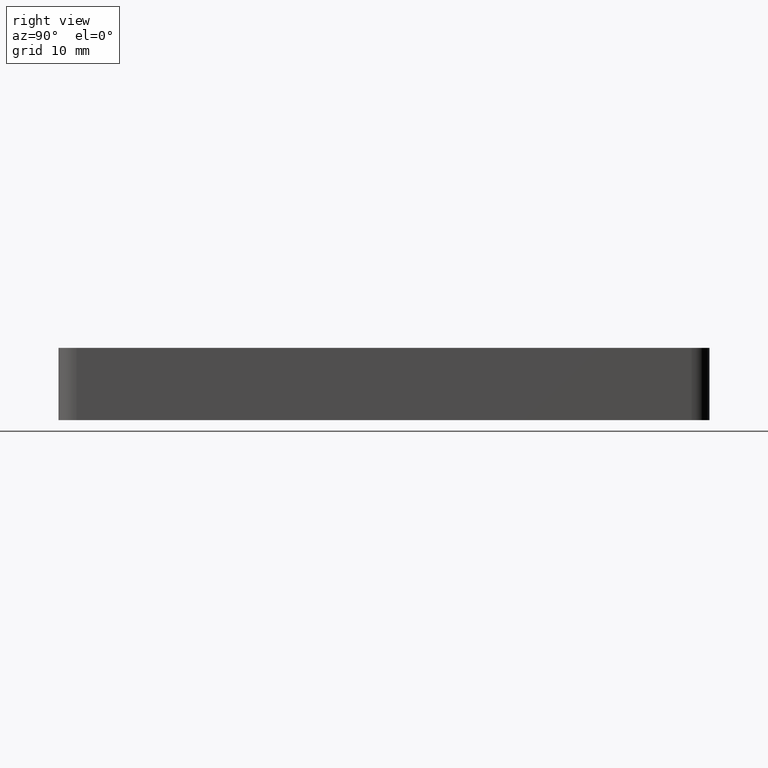
[diagram: clean part render]
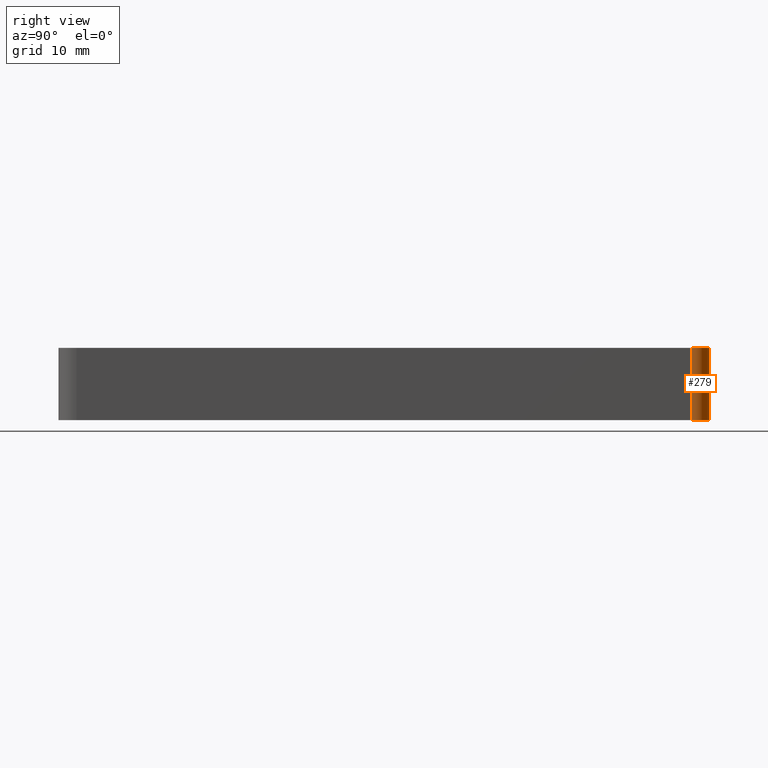
[diagram: same view with one face highlighted and labeled with its STEP entity id]
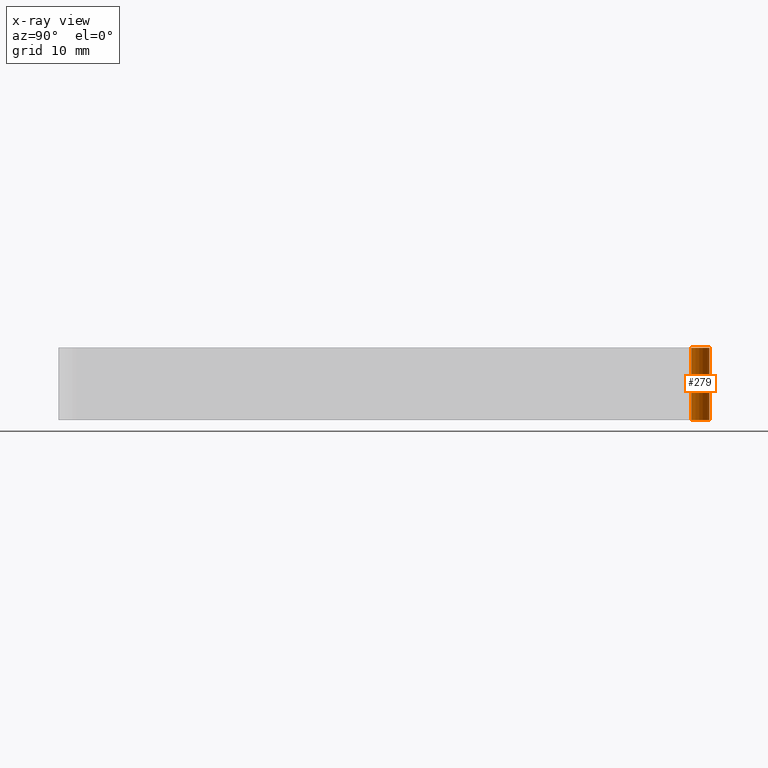
[diagram: x-ray of the same camera — body ghosted, the highlighted face saturated]
A machine part, right view. The second image highlights one B-rep face of the part: STEP entity #279.
The next image is the same camera in x-ray: the body ghosted, the highlighted face saturated — about 0% of this face is hidden behind the body in this view.
In plain terms, the highlighted cylindrical surface (edge-blend (fillet) strip) has radius 2.5 mm, axis along (0, 0, 1).
Its self-contained STEP definition (entity closure, byte-faithful):
#19=LINE('',#454,#35);
#20=LINE('',#460,#36);
#35=VECTOR('',#372,10.);
#36=VECTOR('',#379,10.);
#77=FACE_OUTER_BOUND('',#101,.T.);
#101=EDGE_LOOP('',(#215,#216,#217,#218));
#127=CIRCLE('',#311,2.5);
#128=CIRCLE('',#312,2.5);
#147=VERTEX_POINT('',#450);
#148=VERTEX_POINT('',#452);
#149=VERTEX_POINT('',#456);
#150=VERTEX_POINT('',#458);
#175=EDGE_CURVE('',#147,#148,#19,.T.);
#176=EDGE_CURVE('',#149,#147,#127,.T.);
#177=EDGE_CURVE('',#150,#148,#128,.T.);
#178=EDGE_CURVE('',#149,#150,#20,.T.);
#215=ORIENTED_EDGE('',*,*,#176,.T.);
#216=ORIENTED_EDGE('',*,*,#175,.T.);
#217=ORIENTED_EDGE('',*,*,#177,.F.);
#218=ORIENTED_EDGE('',*,*,#178,.F.);
#267=CYLINDRICAL_SURFACE('',#310,2.5);
#279=ADVANCED_FACE('',(#77),#267,.T.);
#310=AXIS2_PLACEMENT_3D('',#455,#373,#374);
#311=AXIS2_PLACEMENT_3D('',#457,#375,#376);
#312=AXIS2_PLACEMENT_3D('',#459,#377,#378);
#372=DIRECTION('',(0.,0.,1.));
#373=DIRECTION('center_axis',(0.,0.,1.));
#374=DIRECTION('ref_axis',(1.,0.,0.));
#375=DIRECTION('center_axis',(0.,0.,1.));
#376=DIRECTION('ref_axis',(1.,0.,0.));
#377=DIRECTION('center_axis',(0.,0.,1.));
#378=DIRECTION('ref_axis',(1.,0.,0.));
#379=DIRECTION('',(0.,0.,1.));
#450=CARTESIAN_POINT('',(45.1256764380845,90.6013335529333,0.));
#452=CARTESIAN_POINT('',(45.1256764380845,90.6013335529333,10.));
#454=CARTESIAN_POINT('',(45.1256764380845,90.6013335529333,0.));
#455=CARTESIAN_POINT('Origin',(45.1256764380845,88.1013335529333,0.));
#456=CARTESIAN_POINT('',(47.6256764380845,88.1013335529333,0.));
#457=CARTESIAN_POINT('Origin',(45.1256764380845,88.1013335529333,0.));
#458=CARTESIAN_POINT('',(47.6256764380845,88.1013335529333,10.));
#459=CARTESIAN_POINT('Origin',(45.1256764380845,88.1013335529333,10.));
#460=CARTESIAN_POINT('',(47.6256764380845,88.1013335529333,0.));